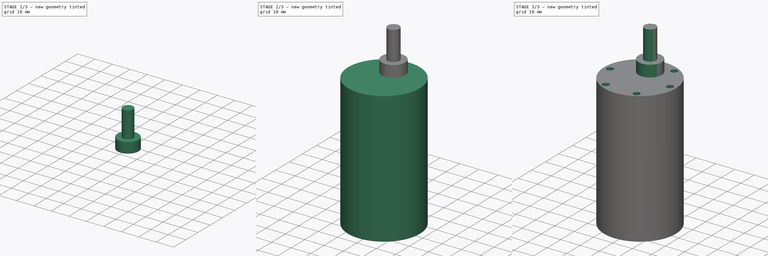
[diagram: build sequence overview — one tinted view per stage of 3, left to right]
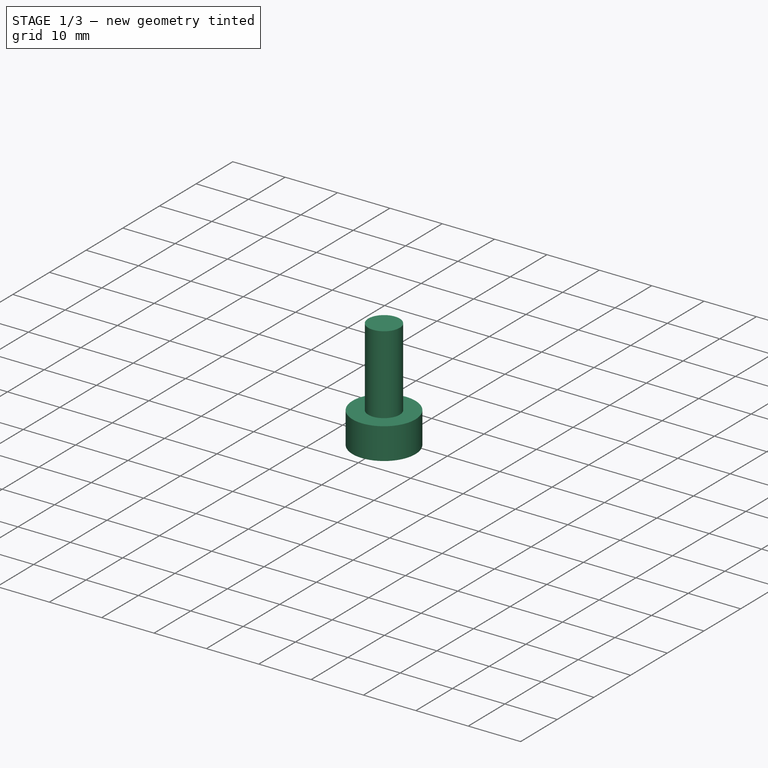
[diagram: stage 1 of 3 — iso view after this stage's code; geometry added in this stage tinted green]
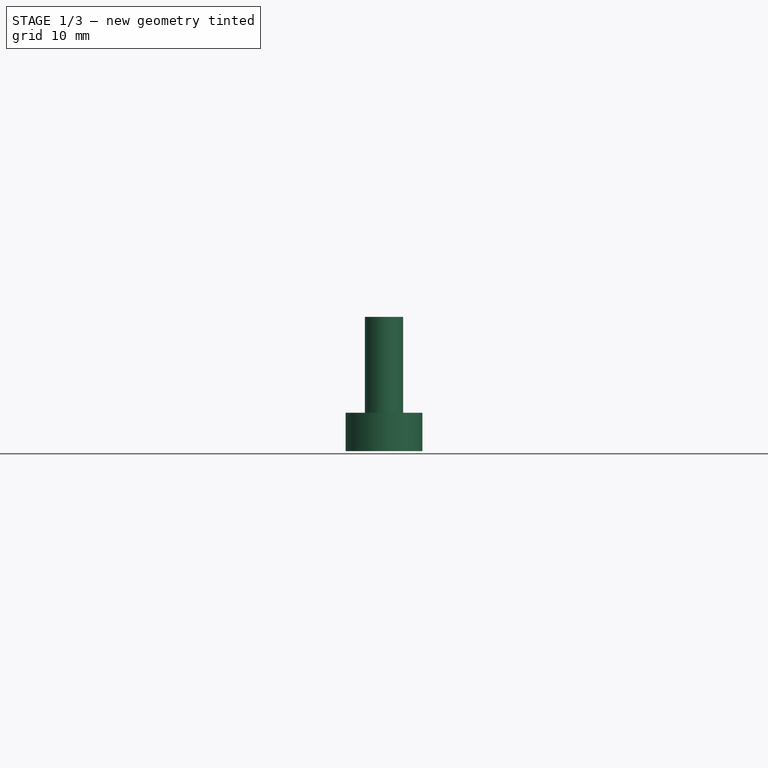
[diagram: stage 1 of 3 — front view after this stage's code; geometry added in this stage tinted green]
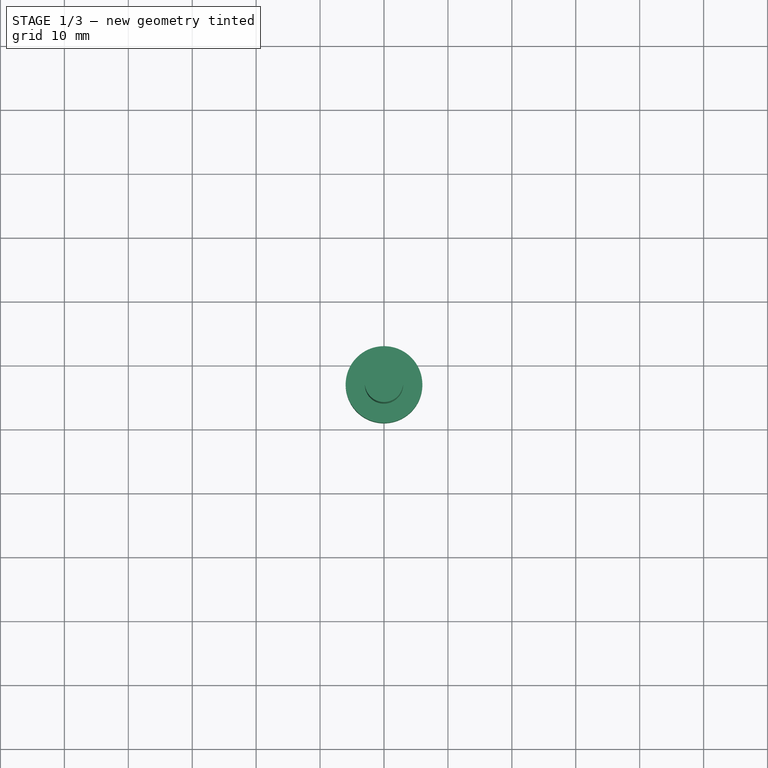
[diagram: stage 1 of 3 — top view after this stage's code; geometry added in this stage tinted green]
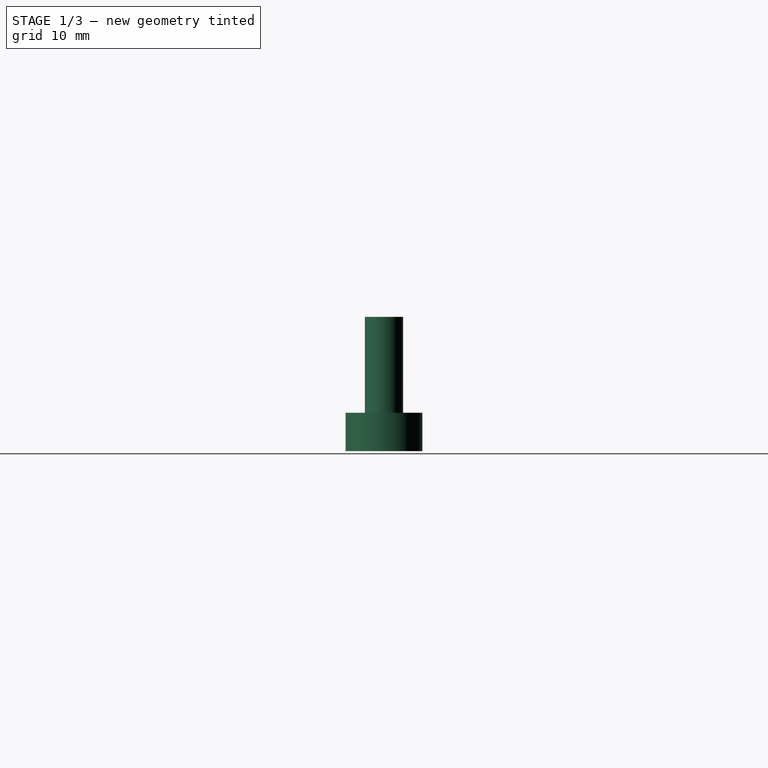
[diagram: stage 1 of 3 — right view after this stage's code; geometry added in this stage tinted green]
FCSTD DOCUMENT  (FreeCAD 0.17R13522 (Git))
Label: Motor
License: All rights reserved
LicenseURL: http://en.wikipedia.org/wiki/All_rights_reserved
objects: Part::Cylinder×3, Part::MultiFuse×1, PartDesign::FeatureBase×1, Sketcher::SketchObject×1, PartDesign::Hole×1, PartDesign::Body×1
note: 9 computed .brp shape members not serialized (recipe doc carries the construction recipe); baked Part::Feature solids carry a one-line shape summary decoded from their .brp

FEATURE [Part::Cylinder] Cylinder001  label="Zylinder001"
  Angle = 360
  AttacherType = Attacher::AttachEngine3D
  Height = 6
  Placement = pos=(0,7,68) rot=(0,0,1;0rad)
  Radius = 6
FEATURE [Part::Cylinder] Cylinder002  label="Zylinder002"
  Angle = 360
  AttacherType = Attacher::AttachEngine3D
  Height = 15
  Placement = pos=(0,7,74) rot=(0,0,1;0rad)
  Radius = 3
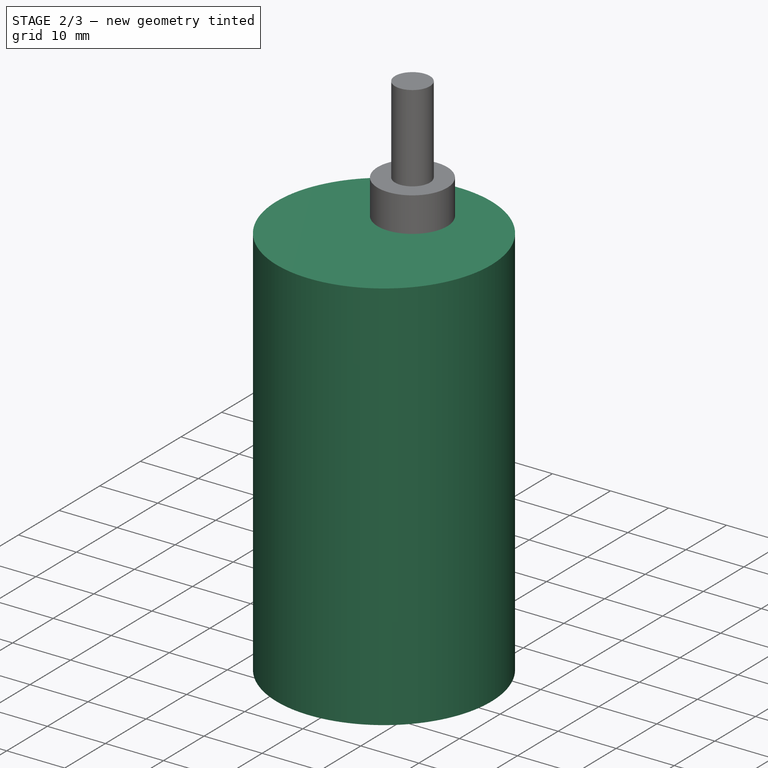
[diagram: stage 2 of 3 — iso view after this stage's code; geometry added in this stage tinted green]
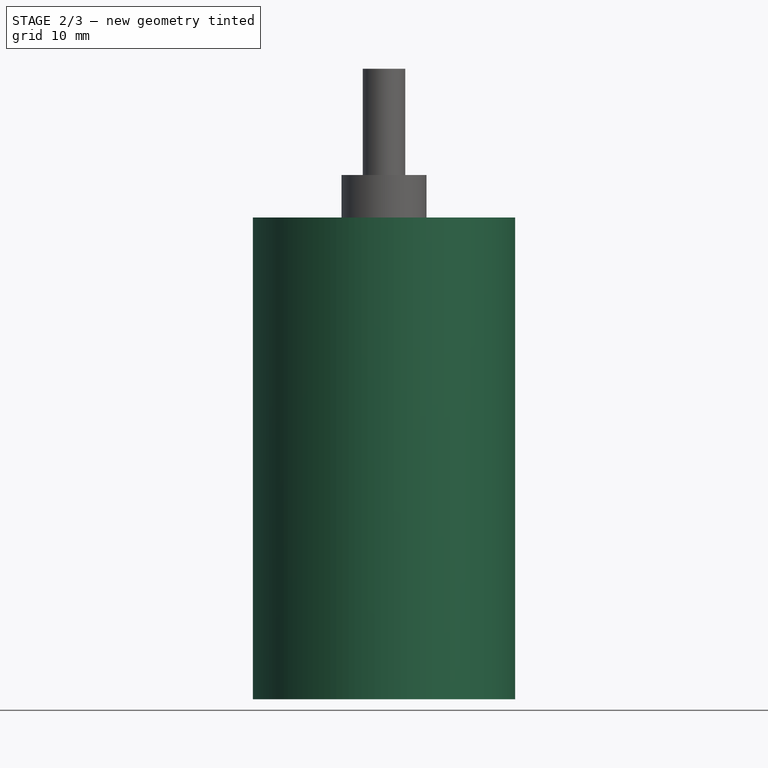
[diagram: stage 2 of 3 — front view after this stage's code; geometry added in this stage tinted green]
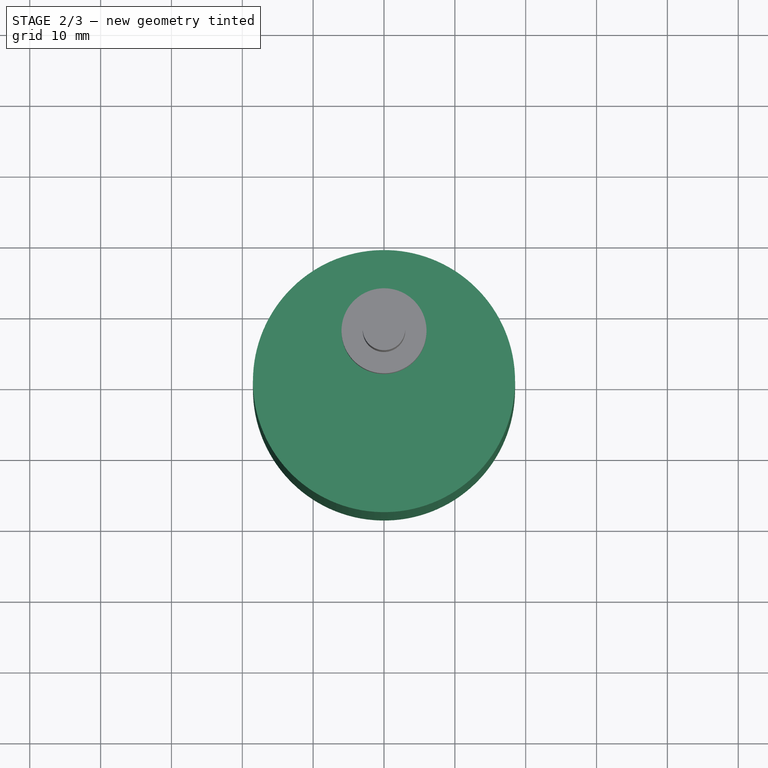
[diagram: stage 2 of 3 — top view after this stage's code; geometry added in this stage tinted green]
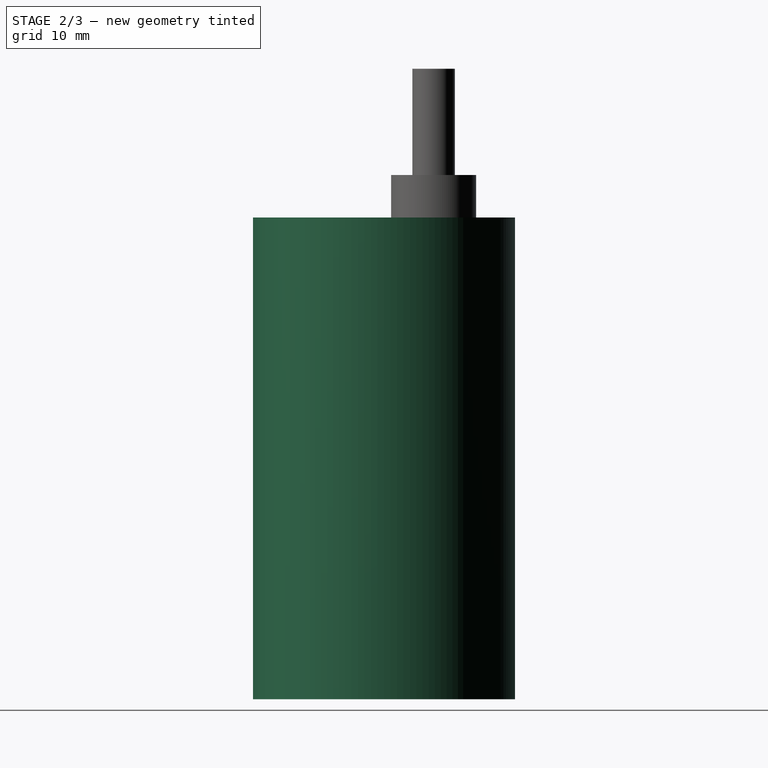
[diagram: stage 2 of 3 — right view after this stage's code; geometry added in this stage tinted green]
FEATURE [Part::Cylinder] Cylinder  label="Zylinder"
  Angle = 360
  AttacherType = Attacher::AttachEngine3D
  Height = 68
  Radius = 18.5
FEATURE [Part::MultiFuse] Fusion
  Shapes = -> [Cylinder002,Cylinder001,Cylinder]
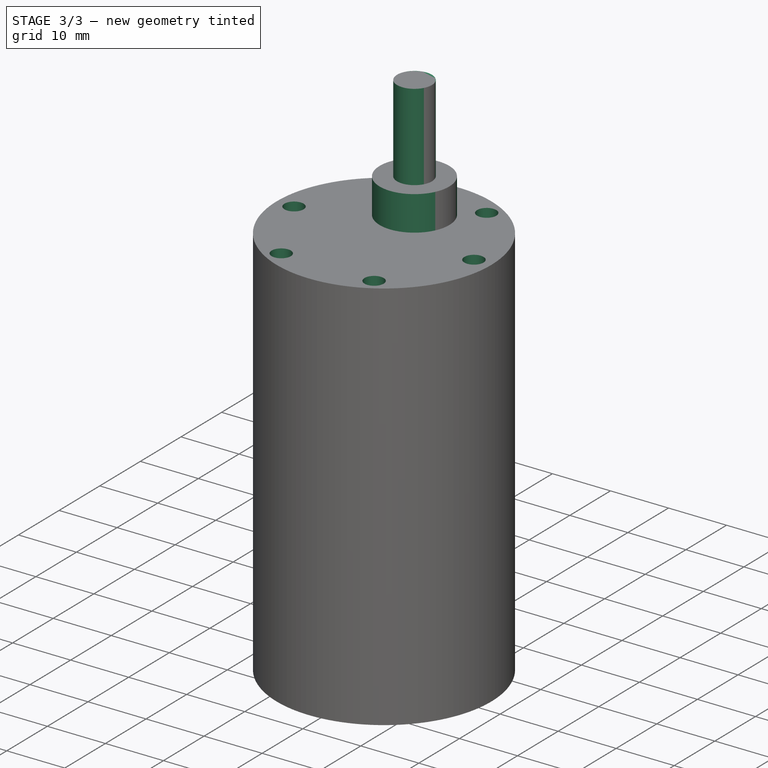
[diagram: stage 3 of 3 — iso view after this stage's code; geometry added in this stage tinted green]
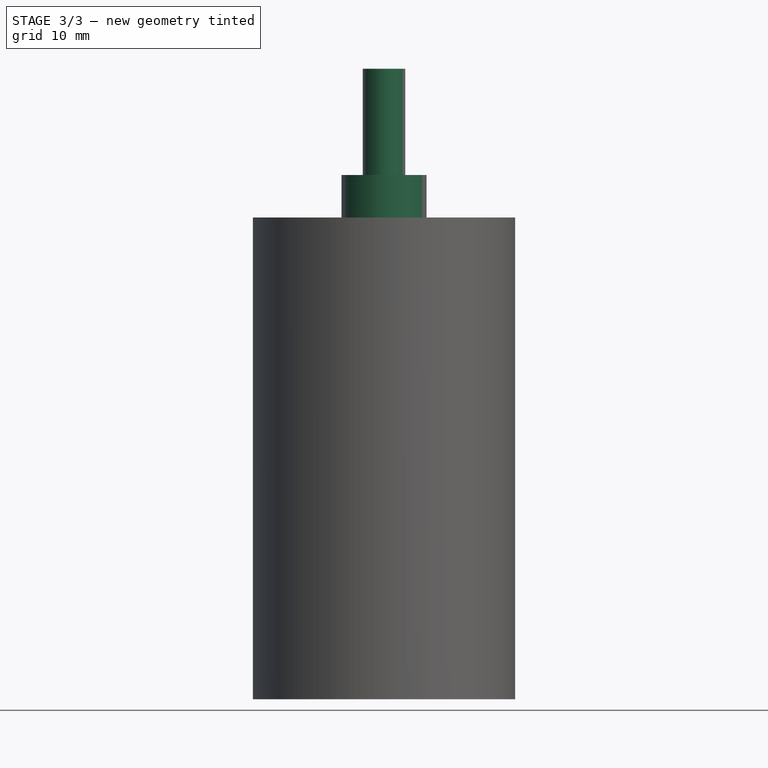
[diagram: stage 3 of 3 — front view after this stage's code; geometry added in this stage tinted green]
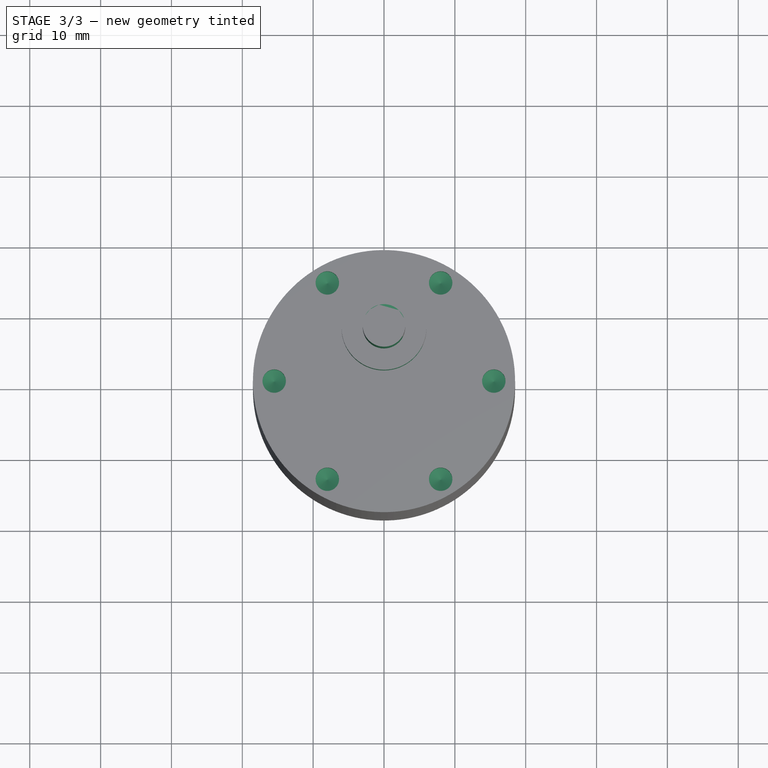
[diagram: stage 3 of 3 — top view after this stage's code; geometry added in this stage tinted green]
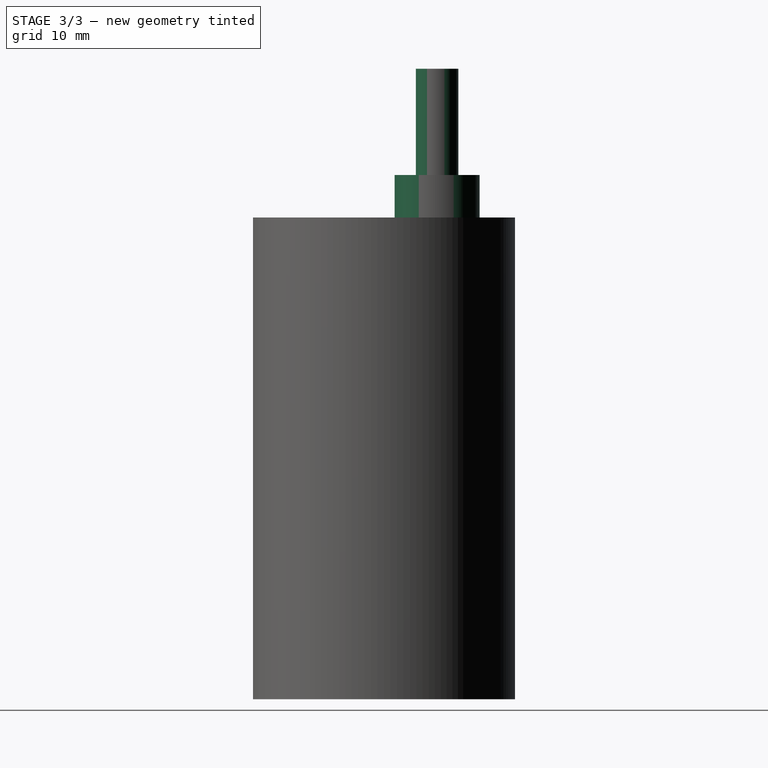
[diagram: stage 3 of 3 — right view after this stage's code; geometry added in this stage tinted green]
FEATURE [PartDesign::FeatureBase] BaseFeature
  BaseFeature = -> Fusion
FEATURE [Sketcher::SketchObject] Sketch
  MapMode = 5
  Placement = pos=(0,0,68) rot=(0,0,1;0rad)
  Support = -> [BaseFeature]
  sketch-geometry (14):
    g0: GeomPoint X=0 Y=-13.856 Z=0
    g1: GeomPoint X=7.75 Y=-13.4234 Z=0
    g2: Circle CenterX=8 CenterY=-13.856 CenterZ=0 NormalX=0 NormalY=0 NormalZ=1 AngleXU=0 Radius=1.5
    g3: Circle CenterX=15.5 CenterY=0 CenterZ=0 NormalX=0 NormalY=0 NormalZ=1 AngleXU=0 Radius=1.5
    g4: Circle CenterX=7.75 CenterY=13.4234 CenterZ=0 NormalX=0 NormalY=0 NormalZ=1 AngleXU=0 Radius=1.5
    g5: Circle CenterX=-7.75 CenterY=13.4234 CenterZ=0 NormalX=0 NormalY=0 NormalZ=1 AngleXU=0 Radius=1.5
    g6: Circle CenterX=-15.5 CenterY=0 CenterZ=0 NormalX=0 NormalY=0 NormalZ=1 AngleXU=0 Radius=1.5
    g7: Circle CenterX=-7.75 CenterY=-13.4234 CenterZ=0 NormalX=0 NormalY=0 NormalZ=1 AngleXU=0 Radius=1.5
    g8: LineSegment StartX=0 StartY=0 StartZ=0 EndX=7.75 EndY=13.4234 EndZ=0
    g9: LineSegment StartX=0 StartY=0 StartZ=0 EndX=-7.75 EndY=13.4234 EndZ=0
    g10: LineSegment StartX=0 StartY=0 StartZ=0 EndX=-15.5 EndY=0 EndZ=0
    g11: LineSegment StartX=0 StartY=0 StartZ=0 EndX=-7.75 EndY=-13.4234 EndZ=0
    g12: LineSegment StartX=0 StartY=0 StartZ=0 EndX=7.75 EndY=-13.4234 EndZ=0
    g13: LineSegment StartX=0 StartY=0 StartZ=0 EndX=15.5 EndY=0 EndZ=0
  constraints (29):
    c: Radius(g2) = 1.5
    c: Radius(g4) = 1.5
    c: Radius(g5) = 1.5
    c: Radius(g6) = 1.5
    c: Radius(g7) = 1.5
    c: Coincident(g8,g-1)
    c: Coincident(g8,g4)
    c: Coincident(g9,g-1)
    c: Coincident(g9,g5)
    c: Coincident(g10,g-1)
    c: Coincident(g10,g6)
    c: Coincident(g11,g-1)
    c: Coincident(g11,g7)
    c: Coincident(g12,g-1)
    c: Coincident(g12,g1)
    c: Coincident(g13,g-1)
    c: Coincident(g13,g3)
    c: Distance(g13) = 15.5
    c: Distance(g8) = 15.5
    c: Distance(g9) = 15.5
    c: Distance(g10) = 15.5
    c: Distance(g11) = 15.5
    c: Radius(g3) = 1.5
    c: Angle(g12,g13) = 1.0472
    c: Angle(g13,g8) = 1.0472
    c: Angle(g8,g9) = 1.0472
    c: Angle(g9,g10) = 1.0472
    c: Angle(g10,g11) = 1.0472
    c: Angle(g12,g-2) = 2.61799
FEATURE [PartDesign::Hole] Hole
  BaseFeature = -> BaseFeature
  Depth = 4
  DepthType = 0
  Diameter = 3.3
  DrillPoint = 1
  DrillPointAngle = 118
  HoleCutCountersinkAngle = 90
  HoleCutDepth = 0
  HoleCutDiameter = 3
  HoleCutType = 0
  ModelActualThread = false
  Profile = -> Sketch
  Tapered = false
  TaperedAngle = 90
  ThreadAngle = 0
  ThreadClass = 0
  ThreadCutOffInner = 0
  ThreadCutOffOuter = 0
  ThreadDirection = 0
  ThreadFit = 0
  ThreadPitch = 0
  ThreadSize = 3
  ThreadType = 1
  Threaded = false
FEATURE [PartDesign::Body] Body
  BaseFeature = -> Fusion
  Group = -> [BaseFeature,Sketch,Hole]
  Origin = -> Origin
  Tip = -> Hole
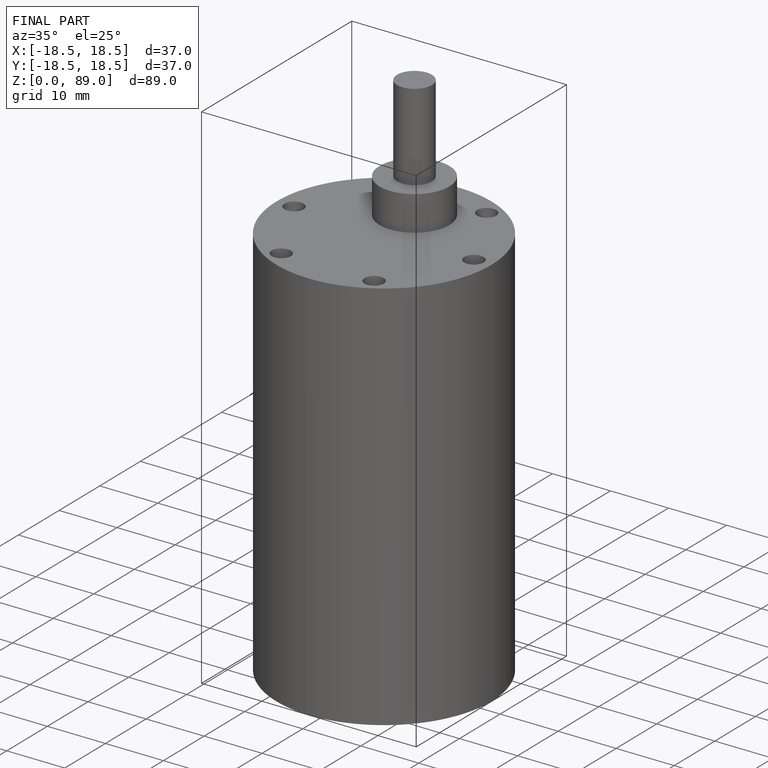
[diagram: finished part — iso view with bounding-box wireframe]
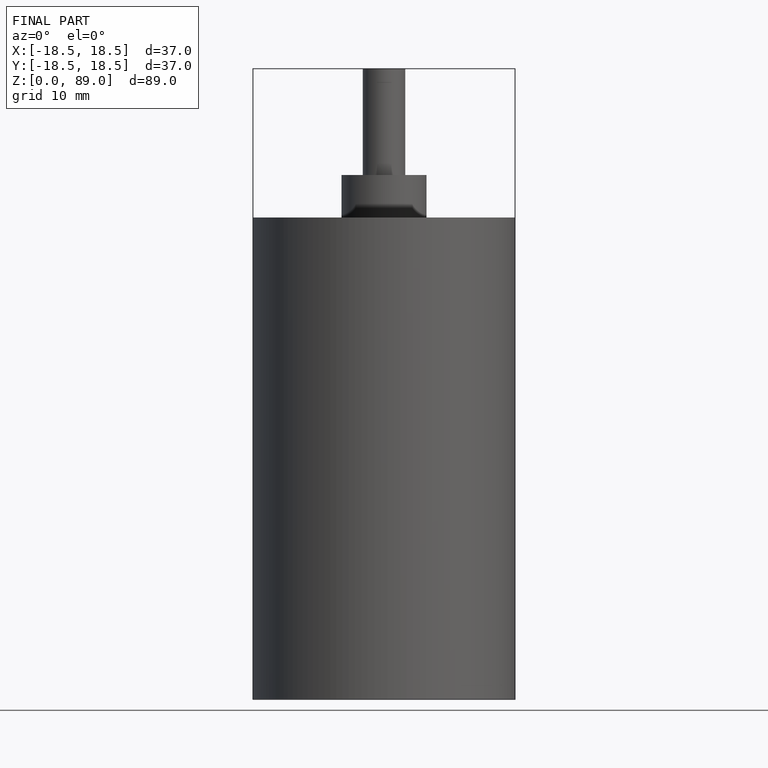
[diagram: finished part — front view with bounding-box wireframe]
